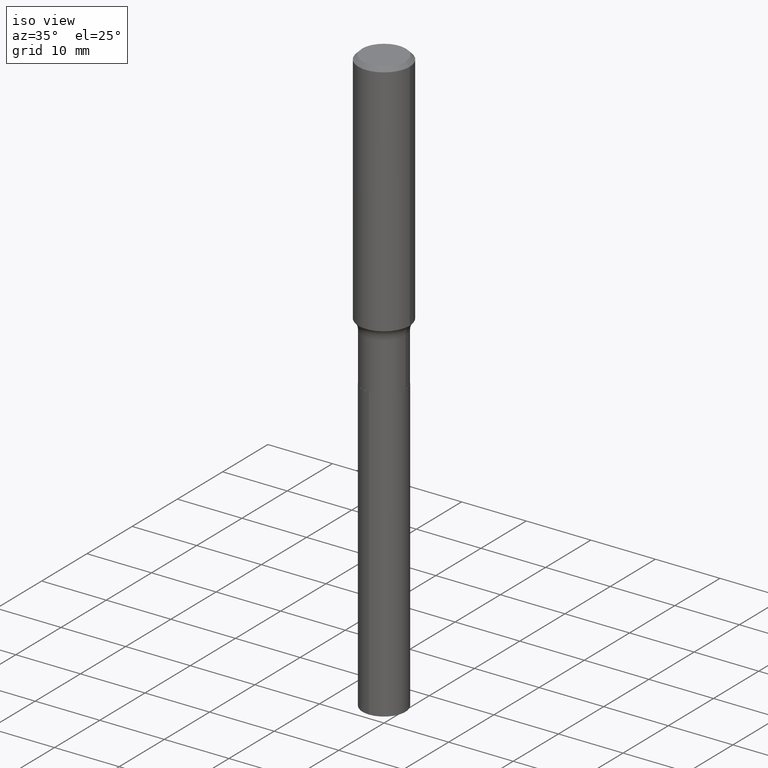
[diagram: clean part render]
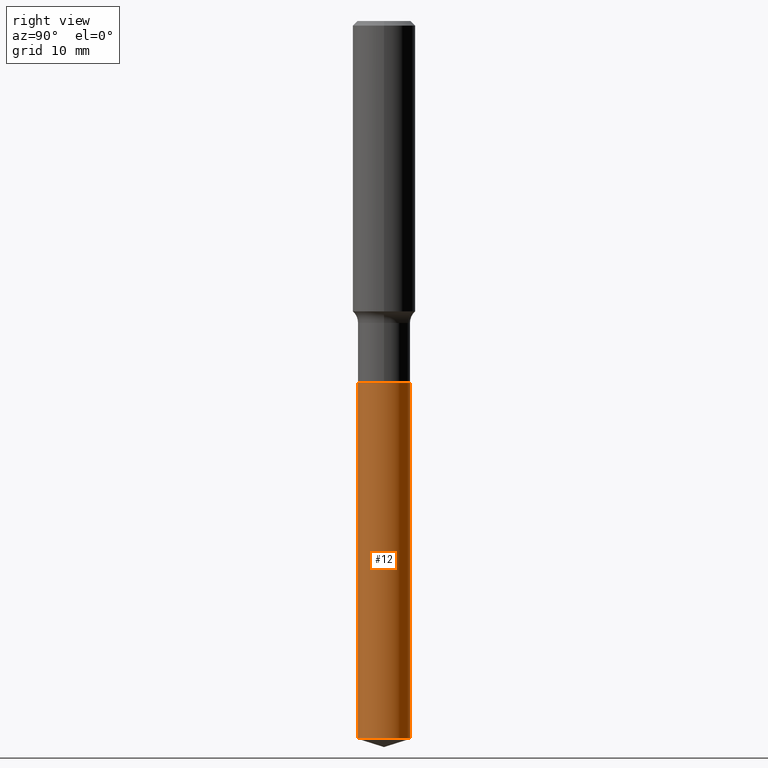
[diagram: tour spotlight — one face highlighted and labeled with its STEP entity id]
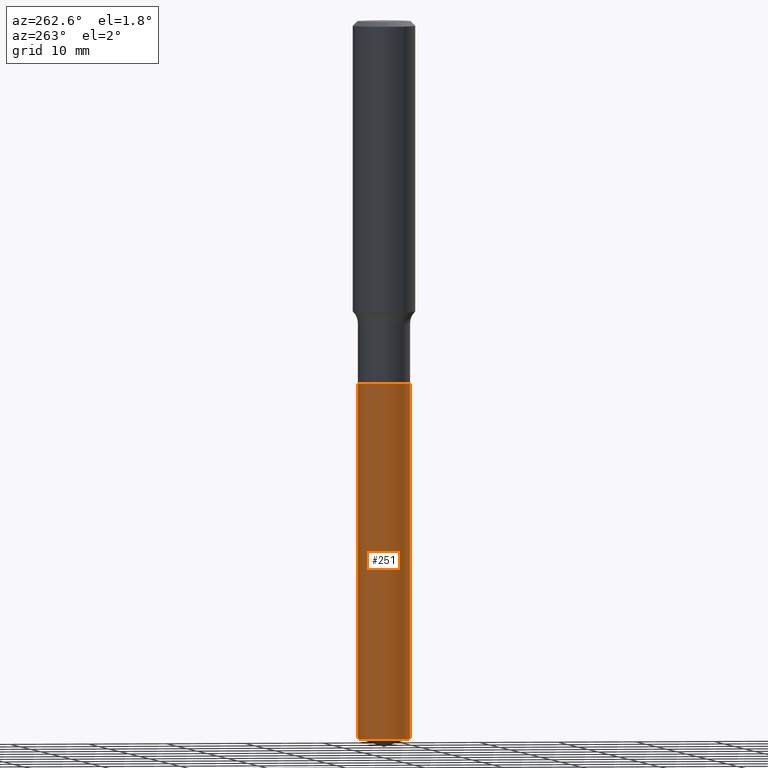
[diagram: tour spotlight — one face highlighted and labeled with its STEP entity id]
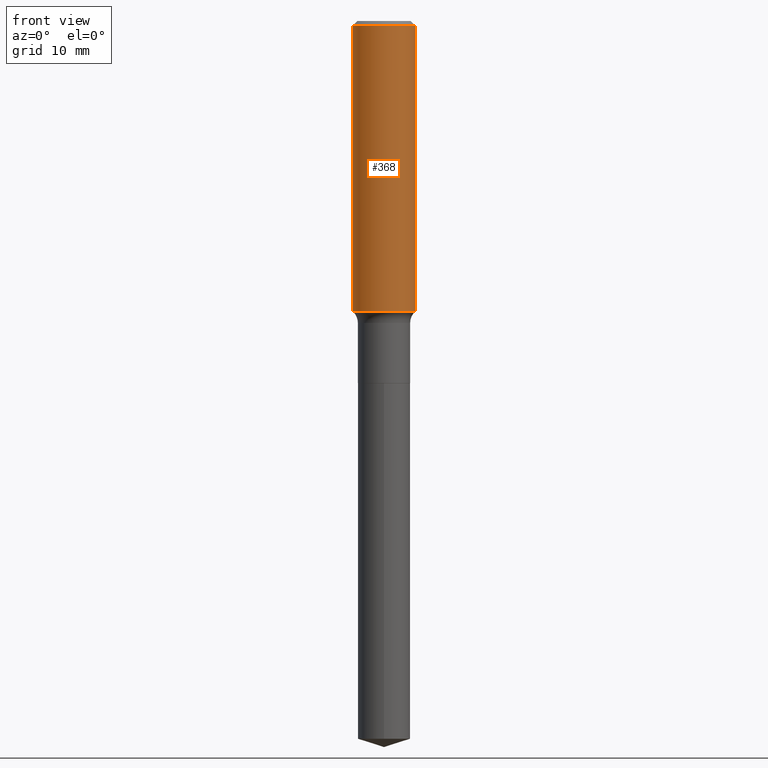
[diagram: tour spotlight — one face highlighted and labeled with its STEP entity id]
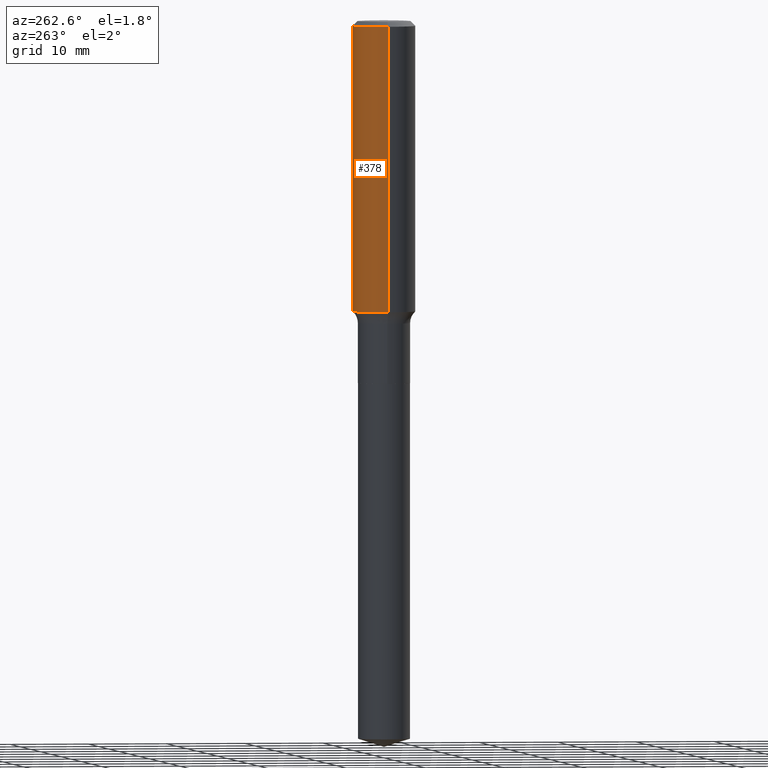
[diagram: tour spotlight — one face highlighted and labeled with its STEP entity id]
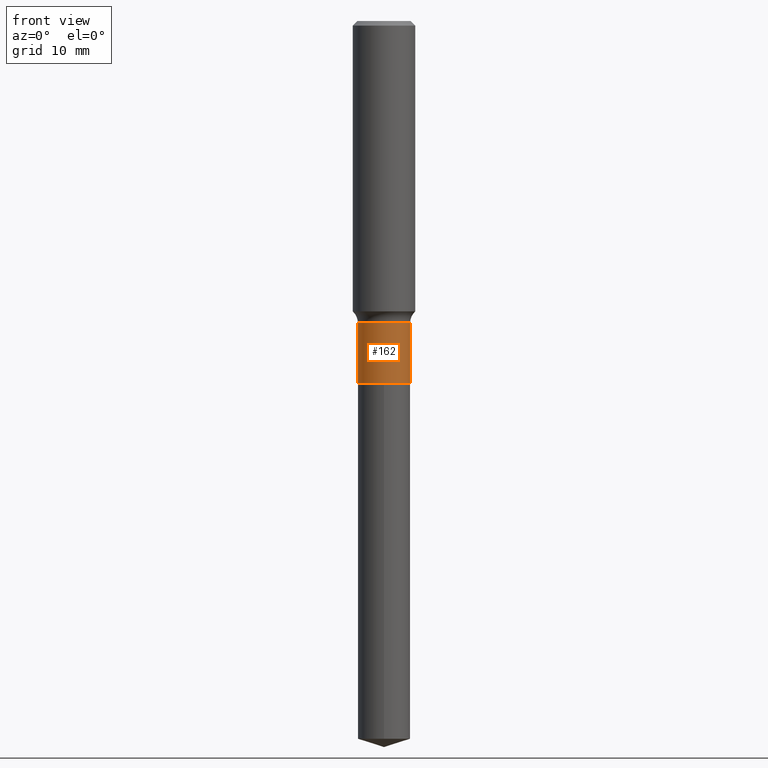
[diagram: tour spotlight — one face highlighted and labeled with its STEP entity id]
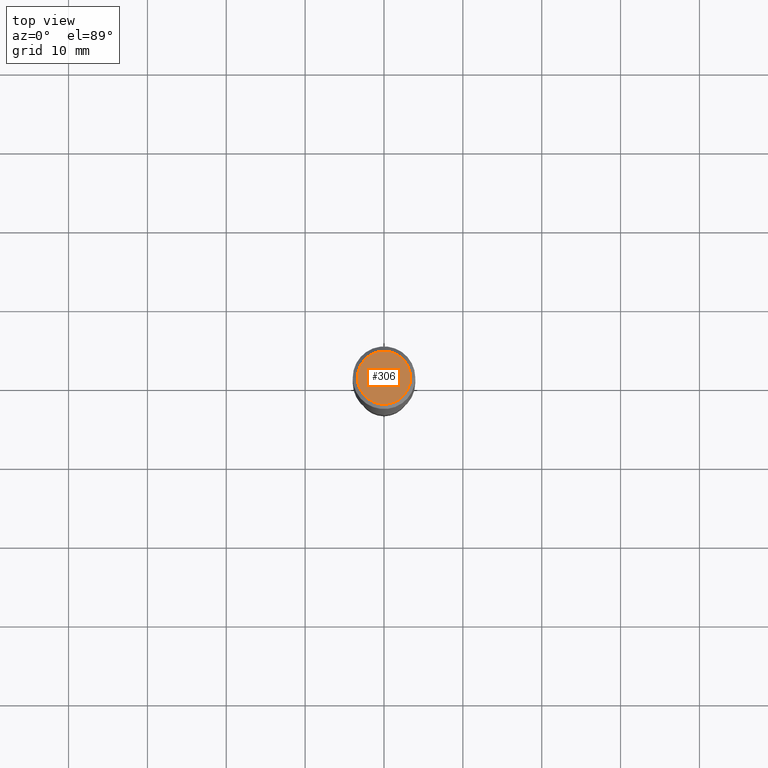
[diagram: tour spotlight — one face highlighted and labeled with its STEP entity id]
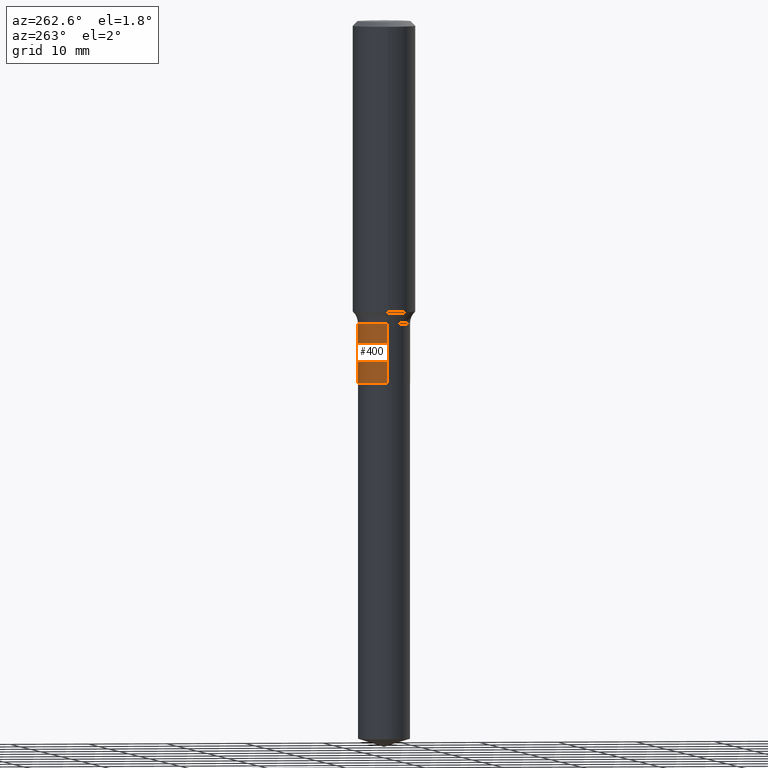
[diagram: tour spotlight — one face highlighted and labeled with its STEP entity id]
A machine part: a face-by-face anatomy tour. The part has 17 B-rep faces; the first image is the clean iso view, then the 7 largest visible faces are spotlighted one at a time (largest first), each with its STEP entity span.

Face 1 — right view, entity #12. In plain terms, the highlighted cylindrical surface (edge-blend (fillet) strip) has radius 3.3147 mm, axis along (-0, 0, 1).
Definition (entity closure, byte-faithful):
#2 = DIRECTION ( 'NONE',  ( -2.445468197637385538E-29, 3.491482210318161491E-15, 1.000000000000000000 ) ) ;
#12 = ADVANCED_FACE ( 'NONE', ( #451 ), #185, .T. ) ;
#41 = LINE ( 'NONE', #459, #104 ) ;
#50 = EDGE_CURVE ( 'NONE', #485, #422, #250, .T. ) ;
#73 = DIRECTION ( 'NONE',  ( -6.982962677686265133E-15, -1.000000000000000000, 4.186740220175115908E-15 ) ) ;
#79 = DIRECTION ( 'NONE',  ( -2.445468197637385538E-29, 3.491482210318161491E-15, 1.000000000000000000 ) ) ;
#94 = ORIENTED_EDGE ( 'NONE', *, *, #420, .F. ) ;
#104 = VECTOR ( 'NONE', #79, 39.37007874015748143 ) ;
#119 = ORIENTED_EDGE ( 'NONE', *, *, #223, .T. ) ;
#122 = AXIS2_PLACEMENT_3D ( 'NONE', #142, #444, #73 ) ;
#123 = CARTESIAN_POINT ( 'NONE',  ( -9.112766294379704315E-16, -0.1305000000000125504, -3.583853508051292547 ) ) ;
#127 = EDGE_CURVE ( 'NONE', #356, #345, #360, .T. ) ;
#142 = CARTESIAN_POINT ( 'NONE',  ( 8.764200879124095995E-29, -1.251295919220774464E-14, -3.583853508051292991 ) ) ;
#151 = CARTESIAN_POINT ( 'NONE',  ( 9.272582701670185380E-16, 0.1304999999999875149, -3.583853508051293879 ) ) ;
#185 = CYLINDRICAL_SURFACE ( 'NONE', #315, 0.1305000000000000049 ) ;
#207 = DIRECTION ( 'NONE',  ( -6.982962677686265133E-15, -1.000000000000000000, 4.186740220175115908E-15 ) ) ;
#215 = DIRECTION ( 'NONE',  ( -2.445468197637385538E-29, 3.491482210318161491E-15, 1.000000000000000000 ) ) ;
#223 = EDGE_CURVE ( 'NONE', #422, #345, #433, .T. ) ;
#226 = AXIS2_PLACEMENT_3D ( 'NONE', #398, #359, #207 ) ;
#234 = EDGE_LOOP ( 'NONE', ( #434, #119, #460, #94 ) ) ;
#250 = CIRCLE ( 'NONE', #122, 0.1305000000000000049 ) ;
#261 = CARTESIAN_POINT ( 'NONE',  ( 9.272582701670185380E-16, 0.1304999999999937044, -1.807900000000000951 ) ) ;
#301 = VECTOR ( 'NONE', #215, 39.37007874015748143 ) ;
#315 = AXIS2_PLACEMENT_3D ( 'NONE', #344, #2, #417 ) ;
#324 = CARTESIAN_POINT ( 'NONE',  ( 9.272582701669747563E-16, 0.1304999999999936766, -1.807900000000000951 ) ) ;
#337 = CARTESIAN_POINT ( 'NONE',  ( -9.112766294380136216E-16, -0.1305000000000063054, -1.807899999999999840 ) ) ;
#344 = CARTESIAN_POINT ( 'NONE',  ( 4.421163054702109447E-29, -6.312249112494524251E-15, -1.807900000000000507 ) ) ;
#345 = VERTEX_POINT ( 'NONE', #261 ) ;
#356 = VERTEX_POINT ( 'NONE', #337 ) ;
#359 = DIRECTION ( 'NONE',  ( -2.445468197637385538E-29, 3.491482210318161491E-15, 1.000000000000000000 ) ) ;
#360 = CIRCLE ( 'NONE', #226, 0.1305000000000000049 ) ;
#398 = CARTESIAN_POINT ( 'NONE',  ( 4.421163054702109447E-29, -6.312249112494524251E-15, -1.807900000000000507 ) ) ;
#417 = DIRECTION ( 'NONE',  ( -6.982962677686265133E-15, -1.000000000000000000, 4.186740220175115908E-15 ) ) ;
#420 = EDGE_CURVE ( 'NONE', #485, #356, #41, .T. ) ;
#422 = VERTEX_POINT ( 'NONE', #151 ) ;
#433 = LINE ( 'NONE', #324, #301 ) ;
#434 = ORIENTED_EDGE ( 'NONE', *, *, #50, .T. ) ;
#444 = DIRECTION ( 'NONE',  ( -2.445468197637385538E-29, 3.491482210318161491E-15, 1.000000000000000000 ) ) ;
#451 = FACE_OUTER_BOUND ( 'NONE', #234, .T. ) ;
#459 = CARTESIAN_POINT ( 'NONE',  ( -9.112766294380136216E-16, -0.1305000000000063054, -1.807899999999999840 ) ) ;
#460 = ORIENTED_EDGE ( 'NONE', *, *, #127, .F. ) ;
#485 = VERTEX_POINT ( 'NONE', #123 ) ;

Face 2 — auxiliary view, entity #251. In plain terms, the highlighted cylindrical surface (edge-blend (fillet) strip) has radius 3.3147 mm, axis along (-0, 0, 1).
Definition (entity closure, byte-faithful):
#18 = ORIENTED_EDGE ( 'NONE', *, *, #456, .F. ) ;
#29 = EDGE_LOOP ( 'NONE', ( #87, #147, #311, #18 ) ) ;
#34 = DIRECTION ( 'NONE',  ( -6.982962677686265133E-15, -1.000000000000000000, 4.186740220175115908E-15 ) ) ;
#41 = LINE ( 'NONE', #459, #104 ) ;
#79 = DIRECTION ( 'NONE',  ( -2.445468197637385538E-29, 3.491482210318161491E-15, 1.000000000000000000 ) ) ;
#87 = ORIENTED_EDGE ( 'NONE', *, *, #223, .F. ) ;
#104 = VECTOR ( 'NONE', #79, 39.37007874015748143 ) ;
#123 = CARTESIAN_POINT ( 'NONE',  ( -9.112766294379704315E-16, -0.1305000000000125504, -3.583853508051292547 ) ) ;
#139 = CIRCLE ( 'NONE', #424, 0.1305000000000000049 ) ;
#147 = ORIENTED_EDGE ( 'NONE', *, *, #228, .T. ) ;
#151 = CARTESIAN_POINT ( 'NONE',  ( 9.272582701670185380E-16, 0.1304999999999875149, -3.583853508051293879 ) ) ;
#180 = DIRECTION ( 'NONE',  ( -2.445468197637385538E-29, 3.491482210318161491E-15, 1.000000000000000000 ) ) ;
#215 = DIRECTION ( 'NONE',  ( -2.445468197637385538E-29, 3.491482210318161491E-15, 1.000000000000000000 ) ) ;
#219 = DIRECTION ( 'NONE',  ( -2.445468197637385538E-29, 3.491482210318161491E-15, 1.000000000000000000 ) ) ;
#223 = EDGE_CURVE ( 'NONE', #422, #345, #433, .T. ) ;
#228 = EDGE_CURVE ( 'NONE', #422, #485, #139, .T. ) ;
#243 = AXIS2_PLACEMENT_3D ( 'NONE', #483, #412, #34 ) ;
#247 = AXIS2_PLACEMENT_3D ( 'NONE', #373, #180, #403 ) ;
#251 = ADVANCED_FACE ( 'NONE', ( #298 ), #407, .T. ) ;
#261 = CARTESIAN_POINT ( 'NONE',  ( 9.272582701670185380E-16, 0.1304999999999937044, -1.807900000000000951 ) ) ;
#298 = FACE_OUTER_BOUND ( 'NONE', #29, .T. ) ;
#301 = VECTOR ( 'NONE', #215, 39.37007874015748143 ) ;
#311 = ORIENTED_EDGE ( 'NONE', *, *, #420, .T. ) ;
#324 = CARTESIAN_POINT ( 'NONE',  ( 9.272582701669747563E-16, 0.1304999999999936766, -1.807900000000000951 ) ) ;
#337 = CARTESIAN_POINT ( 'NONE',  ( -9.112766294380136216E-16, -0.1305000000000063054, -1.807899999999999840 ) ) ;
#341 = CARTESIAN_POINT ( 'NONE',  ( 8.764200879124095995E-29, -1.251295919220774464E-14, -3.583853508051292991 ) ) ;
#345 = VERTEX_POINT ( 'NONE', #261 ) ;
#356 = VERTEX_POINT ( 'NONE', #337 ) ;
#371 = DIRECTION ( 'NONE',  ( -6.982962677686265133E-15, -1.000000000000000000, 4.186740220175115908E-15 ) ) ;
#373 = CARTESIAN_POINT ( 'NONE',  ( 4.421163054702109447E-29, -6.312249112494524251E-15, -1.807900000000000507 ) ) ;
#403 = DIRECTION ( 'NONE',  ( -6.982962677686265133E-15, -1.000000000000000000, 4.186740220175115908E-15 ) ) ;
#407 = CYLINDRICAL_SURFACE ( 'NONE', #243, 0.1305000000000000049 ) ;
#412 = DIRECTION ( 'NONE',  ( -2.445468197637385538E-29, 3.491482210318161491E-15, 1.000000000000000000 ) ) ;
#420 = EDGE_CURVE ( 'NONE', #485, #356, #41, .T. ) ;
#422 = VERTEX_POINT ( 'NONE', #151 ) ;
#424 = AXIS2_PLACEMENT_3D ( 'NONE', #341, #219, #371 ) ;
#433 = LINE ( 'NONE', #324, #301 ) ;
#439 = CIRCLE ( 'NONE', #247, 0.1305000000000000049 ) ;
#456 = EDGE_CURVE ( 'NONE', #345, #356, #439, .T. ) ;
#459 = CARTESIAN_POINT ( 'NONE',  ( -9.112766294380136216E-16, -0.1305000000000063054, -1.807899999999999840 ) ) ;
#483 = CARTESIAN_POINT ( 'NONE',  ( 4.421163054702109447E-29, -6.312249112494524251E-15, -1.807900000000000507 ) ) ;
#485 = VERTEX_POINT ( 'NONE', #123 ) ;

Face 3 — front view, entity #368. In plain terms, the highlighted cylindrical surface (edge-blend (fillet) strip) has radius 3.9688 mm, axis along (-0, 0, 1).
Definition (entity closure, byte-faithful):
#3 = AXIS2_PLACEMENT_3D ( 'NONE', #64, #370, #71 ) ;
#25 = LINE ( 'NONE', #290, #225 ) ;
#30 = DIRECTION ( 'NONE',  ( -2.445468806185136877E-29, 3.491481338843145188E-15, 1.000000000000000000 ) ) ;
#33 = CARTESIAN_POINT ( 'NONE',  ( 5.731567514496448931E-31, -8.183159387913672688E-17, -0.02343750000000014225 ) ) ;
#52 = EDGE_CURVE ( 'NONE', #132, #350, #100, .T. ) ;
#56 = CIRCLE ( 'NONE', #267, 0.1562500000000000000 ) ;
#64 = CARTESIAN_POINT ( 'NONE',  ( 0.000000000000000000, 0.000000000000000000, 0.000000000000000000 ) ) ;
#69 = CARTESIAN_POINT ( 'NONE',  ( 0.1562500000000001665, -6.152991513094644084E-15, -1.449786810655948166 ) ) ;
#71 = DIRECTION ( 'NONE',  ( 1.000000000000000000, -6.982962677686266711E-15, 4.876176775795935232E-29 ) ) ;
#83 = CIRCLE ( 'NONE', #240, 0.1562500000000001665 ) ;
#88 = ORIENTED_EDGE ( 'NONE', *, *, #52, .F. ) ;
#98 = EDGE_CURVE ( 'NONE', #132, #254, #83, .T. ) ;
#100 = LINE ( 'NONE', #369, #286 ) ;
#101 = DIRECTION ( 'NONE',  ( -2.445468806185136597E-29, 3.491481338843145583E-15, 1.000000000000000000 ) ) ;
#116 = VERTEX_POINT ( 'NONE', #475 ) ;
#132 = VERTEX_POINT ( 'NONE', #202 ) ;
#175 = CYLINDRICAL_SURFACE ( 'NONE', #3, 0.1562500000000000833 ) ;
#194 = ORIENTED_EDGE ( 'NONE', *, *, #297, .F. ) ;
#202 = CARTESIAN_POINT ( 'NONE',  ( -0.1562500000000001665, -3.951680570081006003E-15, -1.449786810655948166 ) ) ;
#211 = CARTESIAN_POINT ( 'NONE',  ( 3.545408421077758585E-29, -5.061903594706163333E-15, -1.449786810655948166 ) ) ;
#225 = VECTOR ( 'NONE', #340, 39.37007874015748143 ) ;
#240 = AXIS2_PLACEMENT_3D ( 'NONE', #211, #405, #435 ) ;
#254 = VERTEX_POINT ( 'NONE', #69 ) ;
#267 = AXIS2_PLACEMENT_3D ( 'NONE', #33, #101, #482 ) ;
#273 = EDGE_LOOP ( 'NONE', ( #88, #300, #461, #194 ) ) ;
#286 = VECTOR ( 'NONE', #30, 39.37007874015748143 ) ;
#290 = CARTESIAN_POINT ( 'NONE',  ( 0.1562500000000000833, -1.091087918388479765E-15, 7.619026212181153180E-30 ) ) ;
#297 = EDGE_CURVE ( 'NONE', #350, #116, #56, .T. ) ;
#300 = ORIENTED_EDGE ( 'NONE', *, *, #98, .T. ) ;
#340 = DIRECTION ( 'NONE',  ( -2.445468806185136877E-29, 3.491481338843145188E-15, 1.000000000000000000 ) ) ;
#343 = EDGE_CURVE ( 'NONE', #254, #116, #25, .T. ) ;
#350 = VERTEX_POINT ( 'NONE', #490 ) ;
#368 = ADVANCED_FACE ( 'NONE', ( #415 ), #175, .T. ) ;
#369 = CARTESIAN_POINT ( 'NONE',  ( -0.1562500000000000833, 1.110223024625157132E-15, -7.685836078523293962E-30 ) ) ;
#370 = DIRECTION ( 'NONE',  ( -2.445468806185136597E-29, 3.491481338843145583E-15, 1.000000000000000000 ) ) ;
#405 = DIRECTION ( 'NONE',  ( -2.445468806185136597E-29, 3.491481338843145583E-15, 1.000000000000000000 ) ) ;
#415 = FACE_OUTER_BOUND ( 'NONE', #273, .T. ) ;
#435 = DIRECTION ( 'NONE',  ( 1.000000000000000000, -6.982962677686268288E-15, 0.000000000000000000 ) ) ;
#461 = ORIENTED_EDGE ( 'NONE', *, *, #343, .T. ) ;
#475 = CARTESIAN_POINT ( 'NONE',  ( 0.1562500000000000000, -1.172919512267615999E-15, -0.02343750000000014225 ) ) ;
#482 = DIRECTION ( 'NONE',  ( 1.000000000000000000, -6.982962677686266711E-15, 0.000000000000000000 ) ) ;
#490 = CARTESIAN_POINT ( 'NONE',  ( -0.1562500000000000000, -1.461644569667492947E-15, -0.02343750000000014225 ) ) ;

Face 4 — auxiliary view, entity #378. In plain terms, the highlighted cylindrical surface (edge-blend (fillet) strip) has radius 3.9688 mm, axis along (-0, 0, 1).
Definition (entity closure, byte-faithful):
#14 = ORIENTED_EDGE ( 'NONE', *, *, #382, .F. ) ;
#16 = CARTESIAN_POINT ( 'NONE',  ( 3.545408421077758585E-29, -5.061903594706163333E-15, -1.449786810655948166 ) ) ;
#25 = LINE ( 'NONE', #290, #225 ) ;
#30 = DIRECTION ( 'NONE',  ( -2.445468806185136877E-29, 3.491481338843145188E-15, 1.000000000000000000 ) ) ;
#31 = FACE_OUTER_BOUND ( 'NONE', #264, .T. ) ;
#52 = EDGE_CURVE ( 'NONE', #132, #350, #100, .T. ) ;
#69 = CARTESIAN_POINT ( 'NONE',  ( 0.1562500000000001665, -6.152991513094644084E-15, -1.449786810655948166 ) ) ;
#96 = CYLINDRICAL_SURFACE ( 'NONE', #176, 0.1562500000000000833 ) ;
#100 = LINE ( 'NONE', #369, #286 ) ;
#116 = VERTEX_POINT ( 'NONE', #475 ) ;
#132 = VERTEX_POINT ( 'NONE', #202 ) ;
#136 = CARTESIAN_POINT ( 'NONE',  ( 0.000000000000000000, 0.000000000000000000, 0.000000000000000000 ) ) ;
#176 = AXIS2_PLACEMENT_3D ( 'NONE', #136, #450, #181 ) ;
#181 = DIRECTION ( 'NONE',  ( 1.000000000000000000, -6.982962677686266711E-15, 4.876176775795935232E-29 ) ) ;
#202 = CARTESIAN_POINT ( 'NONE',  ( -0.1562500000000001665, -3.951680570081006003E-15, -1.449786810655948166 ) ) ;
#225 = VECTOR ( 'NONE', #340, 39.37007874015748143 ) ;
#245 = ORIENTED_EDGE ( 'NONE', *, *, #467, .T. ) ;
#252 = CARTESIAN_POINT ( 'NONE',  ( 5.731567514496448931E-31, -8.183159387913672688E-17, -0.02343750000000014225 ) ) ;
#254 = VERTEX_POINT ( 'NONE', #69 ) ;
#257 = CIRCLE ( 'NONE', #486, 0.1562500000000000000 ) ;
#264 = EDGE_LOOP ( 'NONE', ( #245, #479, #14, #320 ) ) ;
#283 = AXIS2_PLACEMENT_3D ( 'NONE', #16, #314, #468 ) ;
#286 = VECTOR ( 'NONE', #30, 39.37007874015748143 ) ;
#290 = CARTESIAN_POINT ( 'NONE',  ( 0.1562500000000000833, -1.091087918388479765E-15, 7.619026212181153180E-30 ) ) ;
#314 = DIRECTION ( 'NONE',  ( -2.445468806185136597E-29, 3.491481338843145583E-15, 1.000000000000000000 ) ) ;
#320 = ORIENTED_EDGE ( 'NONE', *, *, #343, .F. ) ;
#340 = DIRECTION ( 'NONE',  ( -2.445468806185136877E-29, 3.491481338843145188E-15, 1.000000000000000000 ) ) ;
#343 = EDGE_CURVE ( 'NONE', #254, #116, #25, .T. ) ;
#350 = VERTEX_POINT ( 'NONE', #490 ) ;
#369 = CARTESIAN_POINT ( 'NONE',  ( -0.1562500000000000833, 1.110223024625157132E-15, -7.685836078523293962E-30 ) ) ;
#377 = CIRCLE ( 'NONE', #283, 0.1562500000000001665 ) ;
#378 = ADVANCED_FACE ( 'NONE', ( #31 ), #96, .T. ) ;
#382 = EDGE_CURVE ( 'NONE', #116, #350, #257, .T. ) ;
#406 = DIRECTION ( 'NONE',  ( -2.445468806185136597E-29, 3.491481338843145583E-15, 1.000000000000000000 ) ) ;
#450 = DIRECTION ( 'NONE',  ( -2.445468806185136597E-29, 3.491481338843145583E-15, 1.000000000000000000 ) ) ;
#467 = EDGE_CURVE ( 'NONE', #254, #132, #377, .T. ) ;
#468 = DIRECTION ( 'NONE',  ( 1.000000000000000000, -6.982962677686268288E-15, 0.000000000000000000 ) ) ;
#475 = CARTESIAN_POINT ( 'NONE',  ( 0.1562500000000000000, -1.172919512267615999E-15, -0.02343750000000014225 ) ) ;
#478 = DIRECTION ( 'NONE',  ( 1.000000000000000000, -6.982962677686266711E-15, 0.000000000000000000 ) ) ;
#479 = ORIENTED_EDGE ( 'NONE', *, *, #52, .T. ) ;
#486 = AXIS2_PLACEMENT_3D ( 'NONE', #252, #406, #478 ) ;
#490 = CARTESIAN_POINT ( 'NONE',  ( -0.1562500000000000000, -1.461644569667492947E-15, -0.02343750000000014225 ) ) ;

Face 5 — front view, entity #162. In plain terms, the highlighted cylindrical surface (edge-blend (fillet) strip) has radius 3.3147 mm, axis along (-0, 0, 1).
Definition (entity closure, byte-faithful):
#5 = AXIS2_PLACEMENT_3D ( 'NONE', #278, #253, #20 ) ;
#20 = DIRECTION ( 'NONE',  ( 1.000000000000000000, -6.982962677686269077E-15, 0.000000000000000000 ) ) ;
#22 = DIRECTION ( 'NONE',  ( -2.445468806185136597E-29, 3.491481338843145583E-15, 1.000000000000000000 ) ) ;
#37 = AXIS2_PLACEMENT_3D ( 'NONE', #387, #117, #319 ) ;
#42 = CIRCLE ( 'NONE', #37, 0.1304999999999999771 ) ;
#45 = VERTEX_POINT ( 'NONE', #293 ) ;
#51 = CARTESIAN_POINT ( 'NONE',  ( 0.000000000000000000, 0.000000000000000000, 0.000000000000000000 ) ) ;
#57 = VECTOR ( 'NONE', #217, 39.37007874015748143 ) ;
#80 = EDGE_CURVE ( 'NONE', #157, #45, #152, .T. ) ;
#89 = LINE ( 'NONE', #326, #386 ) ;
#117 = DIRECTION ( 'NONE',  ( -2.445468806185136597E-29, 3.491481338843145583E-15, 1.000000000000000000 ) ) ;
#121 = FACE_OUTER_BOUND ( 'NONE', #266, .T. ) ;
#131 = AXIS2_PLACEMENT_3D ( 'NONE', #51, #22, #357 ) ;
#152 = CIRCLE ( 'NONE', #5, 0.1305000000000000049 ) ;
#156 = ORIENTED_EDGE ( 'NONE', *, *, #442, .T. ) ;
#157 = VERTEX_POINT ( 'NONE', #361 ) ;
#161 = VERTEX_POINT ( 'NONE', #471 ) ;
#162 = ADVANCED_FACE ( 'NONE', ( #121 ), #362, .T. ) ;
#199 = ORIENTED_EDGE ( 'NONE', *, *, #210, .F. ) ;
#201 = VERTEX_POINT ( 'NONE', #276 ) ;
#210 = EDGE_CURVE ( 'NONE', #157, #161, #89, .T. ) ;
#213 = CARTESIAN_POINT ( 'NONE',  ( 0.1304999999999999771, -9.112766294380576006E-16, 6.363410692413695873E-30 ) ) ;
#217 = DIRECTION ( 'NONE',  ( -2.445468806185136877E-29, 3.491481338843145188E-15, 1.000000000000000000 ) ) ;
#253 = DIRECTION ( 'NONE',  ( -2.445468806185136597E-29, 3.491481338843145583E-15, 1.000000000000000000 ) ) ;
#266 = EDGE_LOOP ( 'NONE', ( #199, #414, #156, #466 ) ) ;
#276 = CARTESIAN_POINT ( 'NONE',  ( 0.1304999999999999771, -6.175383044011868116E-15, -1.507700000000000040 ) ) ;
#278 = CARTESIAN_POINT ( 'NONE',  ( 4.419940320299016646E-29, -6.310503371825102747E-15, -1.807400000000000562 ) ) ;
#293 = CARTESIAN_POINT ( 'NONE',  ( 0.1305000000000000049, -7.221780001263161531E-15, -1.807400000000000562 ) ) ;
#319 = DIRECTION ( 'NONE',  ( 1.000000000000000000, -6.982962677686263555E-15, 0.000000000000000000 ) ) ;
#326 = CARTESIAN_POINT ( 'NONE',  ( -0.1304999999999999771, 9.272582701669305801E-16, -6.419210292782651118E-30 ) ) ;
#357 = DIRECTION ( 'NONE',  ( 1.000000000000000000, -6.982962677686266711E-15, 4.876176775795936353E-29 ) ) ;
#361 = CARTESIAN_POINT ( 'NONE',  ( -0.1305000000000000049, -4.860046623032525262E-15, -1.807400000000000562 ) ) ;
#362 = CYLINDRICAL_SURFACE ( 'NONE', #131, 0.1304999999999999771 ) ;
#386 = VECTOR ( 'NONE', #402, 39.37007874015748143 ) ;
#387 = CARTESIAN_POINT ( 'NONE',  ( 3.687033319085330563E-29, -5.264106414573810909E-15, -1.507700000000000040 ) ) ;
#402 = DIRECTION ( 'NONE',  ( -2.445468806185136877E-29, 3.491481338843145188E-15, 1.000000000000000000 ) ) ;
#409 = LINE ( 'NONE', #213, #57 ) ;
#414 = ORIENTED_EDGE ( 'NONE', *, *, #80, .T. ) ;
#442 = EDGE_CURVE ( 'NONE', #45, #201, #409, .T. ) ;
#466 = ORIENTED_EDGE ( 'NONE', *, *, #488, .F. ) ;
#471 = CARTESIAN_POINT ( 'NONE',  ( -0.1304999999999999771, -4.860046623032525262E-15, -1.507700000000000040 ) ) ;
#488 = EDGE_CURVE ( 'NONE', #161, #201, #42, .T. ) ;

Face 6 — top view, entity #306. In plain terms, the highlighted planar face has unit normal (0, -0, -1).
Definition (entity closure, byte-faithful):
#6 = DIRECTION ( 'NONE',  ( 1.000000000000000000, -6.982962677686268288E-15, 4.876286914311434227E-29 ) ) ;
#62 = DIRECTION ( 'NONE',  ( 2.438088387897960049E-29, -3.491481338843145188E-15, -1.000000000000000000 ) ) ;
#114 = VERTEX_POINT ( 'NONE', #249 ) ;
#135 = PLANE ( 'NONE',  #258 ) ;
#137 = CIRCLE ( 'NONE', #192, 0.1328125000000000000 ) ;
#144 = DIRECTION ( 'NONE',  ( 1.000000000000000000, -6.982962677686268288E-15, 4.876286914311434227E-29 ) ) ;
#192 = AXIS2_PLACEMENT_3D ( 'NONE', #351, #304, #6 ) ;
#214 = CARTESIAN_POINT ( 'NONE',  ( -3.977515959410825406E-47, 5.678838639081919634E-33, 1.626484030117578921E-18 ) ) ;
#229 = ORIENTED_EDGE ( 'NONE', *, *, #233, .T. ) ;
#233 = EDGE_CURVE ( 'NONE', #462, #114, #269, .T. ) ;
#249 = CARTESIAN_POINT ( 'NONE',  ( -0.1328125000000000000, 9.683405275697749214E-16, 3.252968060228529177E-18 ) ) ;
#256 = FACE_OUTER_BOUND ( 'NONE', #352, .T. ) ;
#258 = AXIS2_PLACEMENT_3D ( 'NONE', #214, #62, #410 ) ;
#269 = CIRCLE ( 'NONE', #316, 0.1328125000000000000 ) ;
#291 = DIRECTION ( 'NONE',  ( -2.445468806185136597E-29, 3.491481338843145583E-15, 1.000000000000000000 ) ) ;
#304 = DIRECTION ( 'NONE',  ( -2.445468806185136597E-29, 3.491481338843145583E-15, 1.000000000000000000 ) ) ;
#306 = ADVANCED_FACE ( 'NONE', ( #256 ), #135, .F. ) ;
#316 = AXIS2_PLACEMENT_3D ( 'NONE', #491, #291, #144 ) ;
#351 = CARTESIAN_POINT ( 'NONE',  ( -7.955031918821650812E-47, 1.135767727816383927E-32, 3.252968060235157842E-18 ) ) ;
#352 = EDGE_LOOP ( 'NONE', ( #401, #229 ) ) ;
#390 = EDGE_CURVE ( 'NONE', #114, #462, #137, .T. ) ;
#401 = ORIENTED_EDGE ( 'NONE', *, *, #390, .T. ) ;
#410 = DIRECTION ( 'NONE',  ( -1.000000000000000000, 6.982962677686265922E-15, -4.876176775795935793E-29 ) ) ;
#426 = CARTESIAN_POINT ( 'NONE',  ( 0.1328125000000000000, -1.032472148179985084E-15, 3.252968060242010686E-18 ) ) ;
#462 = VERTEX_POINT ( 'NONE', #426 ) ;
#491 = CARTESIAN_POINT ( 'NONE',  ( -7.955031918821650812E-47, 1.135767727816383927E-32, 3.252968060235157842E-18 ) ) ;

Face 7 — auxiliary view, entity #400. In plain terms, the highlighted cylindrical surface (edge-blend (fillet) strip) has radius 3.3147 mm, axis along (-0, 0, 1).
Definition (entity closure, byte-faithful):
#39 = ORIENTED_EDGE ( 'NONE', *, *, #287, .F. ) ;
#45 = VERTEX_POINT ( 'NONE', #293 ) ;
#57 = VECTOR ( 'NONE', #217, 39.37007874015748143 ) ;
#68 = DIRECTION ( 'NONE',  ( -2.445468806185136597E-29, 3.491481338843145583E-15, 1.000000000000000000 ) ) ;
#89 = LINE ( 'NONE', #326, #386 ) ;
#93 = EDGE_LOOP ( 'NONE', ( #325, #388, #39, #231 ) ) ;
#99 = CIRCLE ( 'NONE', #159, 0.1304999999999999771 ) ;
#157 = VERTEX_POINT ( 'NONE', #361 ) ;
#159 = AXIS2_PLACEMENT_3D ( 'NONE', #487, #480, #379 ) ;
#161 = VERTEX_POINT ( 'NONE', #471 ) ;
#187 = DIRECTION ( 'NONE',  ( 1.000000000000000000, -6.982962677686266711E-15, 4.876176775795936353E-29 ) ) ;
#201 = VERTEX_POINT ( 'NONE', #276 ) ;
#210 = EDGE_CURVE ( 'NONE', #157, #161, #89, .T. ) ;
#213 = CARTESIAN_POINT ( 'NONE',  ( 0.1304999999999999771, -9.112766294380576006E-16, 6.363410692413695873E-30 ) ) ;
#217 = DIRECTION ( 'NONE',  ( -2.445468806185136877E-29, 3.491481338843145188E-15, 1.000000000000000000 ) ) ;
#227 = FACE_OUTER_BOUND ( 'NONE', #93, .T. ) ;
#231 = ORIENTED_EDGE ( 'NONE', *, *, #442, .F. ) ;
#268 = AXIS2_PLACEMENT_3D ( 'NONE', #381, #419, #187 ) ;
#276 = CARTESIAN_POINT ( 'NONE',  ( 0.1304999999999999771, -6.175383044011868116E-15, -1.507700000000000040 ) ) ;
#287 = EDGE_CURVE ( 'NONE', #201, #161, #99, .T. ) ;
#293 = CARTESIAN_POINT ( 'NONE',  ( 0.1305000000000000049, -7.221780001263161531E-15, -1.807400000000000562 ) ) ;
#302 = CARTESIAN_POINT ( 'NONE',  ( 4.419940320299016646E-29, -6.310503371825102747E-15, -1.807400000000000562 ) ) ;
#325 = ORIENTED_EDGE ( 'NONE', *, *, #336, .T. ) ;
#326 = CARTESIAN_POINT ( 'NONE',  ( -0.1304999999999999771, 9.272582701669305801E-16, -6.419210292782651118E-30 ) ) ;
#336 = EDGE_CURVE ( 'NONE', #45, #157, #423, .T. ) ;
#346 = CYLINDRICAL_SURFACE ( 'NONE', #268, 0.1304999999999999771 ) ;
#361 = CARTESIAN_POINT ( 'NONE',  ( -0.1305000000000000049, -4.860046623032525262E-15, -1.807400000000000562 ) ) ;
#364 = DIRECTION ( 'NONE',  ( 1.000000000000000000, -6.982962677686269077E-15, 0.000000000000000000 ) ) ;
#379 = DIRECTION ( 'NONE',  ( 1.000000000000000000, -6.982962677686263555E-15, 0.000000000000000000 ) ) ;
#381 = CARTESIAN_POINT ( 'NONE',  ( 0.000000000000000000, 0.000000000000000000, 0.000000000000000000 ) ) ;
#386 = VECTOR ( 'NONE', #402, 39.37007874015748143 ) ;
#388 = ORIENTED_EDGE ( 'NONE', *, *, #210, .T. ) ;
#391 = AXIS2_PLACEMENT_3D ( 'NONE', #302, #68, #364 ) ;
#400 = ADVANCED_FACE ( 'NONE', ( #227 ), #346, .T. ) ;
#402 = DIRECTION ( 'NONE',  ( -2.445468806185136877E-29, 3.491481338843145188E-15, 1.000000000000000000 ) ) ;
#409 = LINE ( 'NONE', #213, #57 ) ;
#419 = DIRECTION ( 'NONE',  ( -2.445468806185136597E-29, 3.491481338843145583E-15, 1.000000000000000000 ) ) ;
#423 = CIRCLE ( 'NONE', #391, 0.1305000000000000049 ) ;
#442 = EDGE_CURVE ( 'NONE', #45, #201, #409, .T. ) ;
#471 = CARTESIAN_POINT ( 'NONE',  ( -0.1304999999999999771, -4.860046623032525262E-15, -1.507700000000000040 ) ) ;
#480 = DIRECTION ( 'NONE',  ( -2.445468806185136597E-29, 3.491481338843145583E-15, 1.000000000000000000 ) ) ;
#487 = CARTESIAN_POINT ( 'NONE',  ( 3.687033319085330563E-29, -5.264106414573810909E-15, -1.507700000000000040 ) ) ;